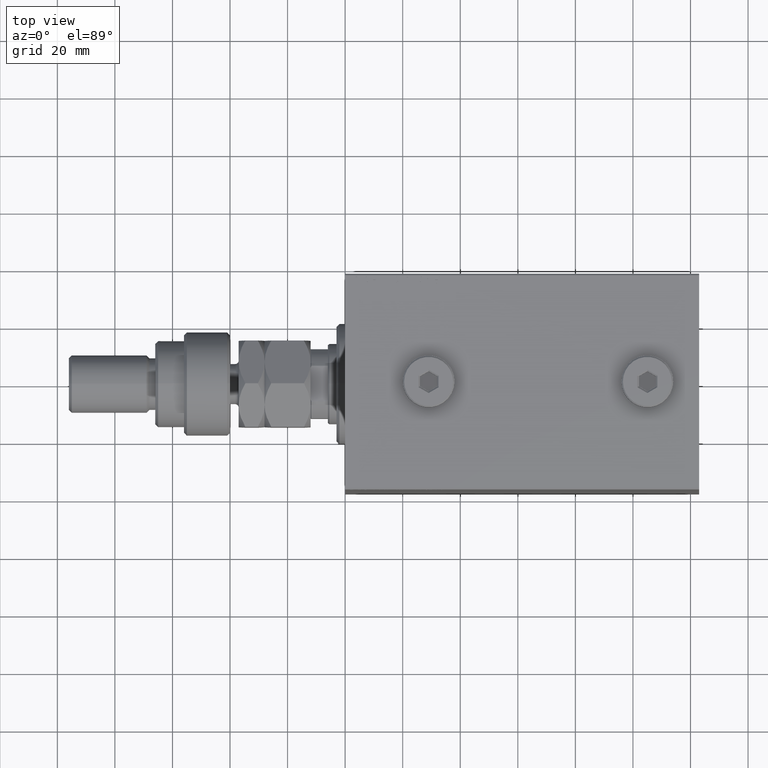
[diagram: clean part render]
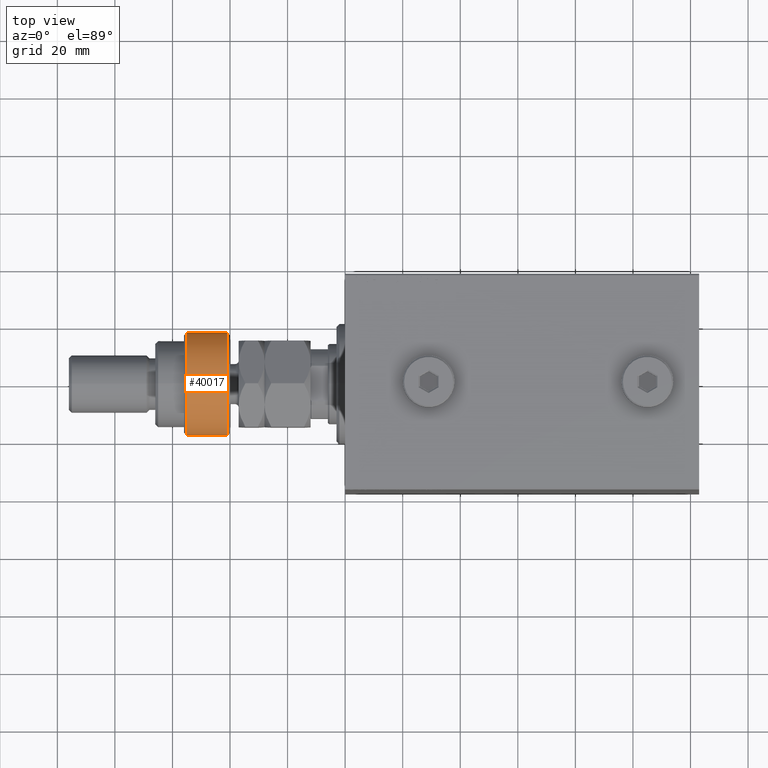
[diagram: same view with one face highlighted and labeled with its STEP entity id]
A machine part, top view. The second image highlights one B-rep face of the part: STEP entity #40017.
In plain terms, the highlighted cylindrical surface (partial cylindrical patch) has radius 18 mm, axis along (1, -0, -0).
Its self-contained STEP definition (entity closure, byte-faithful):
#642 = DIRECTION ( 'NONE',  ( -0.000000000000000000, -0.000000000000000000, -1.000000000000000000 ) ) ;
#1760 = CYLINDRICAL_SURFACE ( 'NONE', #39919, 18.00000000000000000 ) ;
#4606 = EDGE_CURVE ( 'NONE', #9627, #25214, #24994, .T. ) ;
#6943 = DIRECTION ( 'NONE',  ( 1.000000000000000000, 0.000000000000000000, 0.000000000000000000 ) ) ;
#7094 = CIRCLE ( 'NONE', #32162, 18.00000000000000000 ) ;
#7688 = EDGE_CURVE ( 'NONE', #43126, #9627, #7094, .T. ) ;
#7691 = CIRCLE ( 'NONE', #20218, 18.00000000000000000 ) ;
#7841 = ORIENTED_EDGE ( 'NONE', *, *, #7688, .T. ) ;
#8641 = LINE ( 'NONE', #42496, #25008 ) ;
#8898 = DIRECTION ( 'NONE',  ( -1.000000000000000000, 0.000000000000000000, 0.000000000000000000 ) ) ;
#9627 = VERTEX_POINT ( 'NONE', #18292 ) ;
#9654 = VERTEX_POINT ( 'NONE', #33021 ) ;
#9841 = CARTESIAN_POINT ( 'NONE',  ( -16.36306817195357155, -7.500000000000000000, 1.000000000000011324 ) ) ;
#12574 = FACE_OUTER_BOUND ( 'NONE', #40345, .T. ) ;
#12891 = CARTESIAN_POINT ( 'NONE',  ( 0.000000000000000000, 0.000000000000000000, 14.99999999999999645 ) ) ;
#15198 = DIRECTION ( 'NONE',  ( -0.000000000000000000, -0.000000000000000000, 1.000000000000000000 ) ) ;
#16377 = AXIS2_PLACEMENT_3D ( 'NONE', #36150, #27881, #6943 ) ;
#18079 = ORIENTED_EDGE ( 'NONE', *, *, #42173, .T. ) ;
#18292 = CARTESIAN_POINT ( 'NONE',  ( 18.00000000000000000, 0.000000000000000000, 1.000000000000011324 ) ) ;
#18800 = LINE ( 'NONE', #30332, #23232 ) ;
#19486 = ORIENTED_EDGE ( 'NONE', *, *, #34875, .T. ) ;
#20218 = AXIS2_PLACEMENT_3D ( 'NONE', #12891, #23193, #27605 ) ;
#23193 = DIRECTION ( 'NONE',  ( 0.000000000000000000, 0.000000000000000000, -1.000000000000000000 ) ) ;
#23232 = VECTOR ( 'NONE', #642, 1000.000000000000000 ) ;
#24994 = CIRCLE ( 'NONE', #16377, 18.00000000000000000 ) ;
#25008 = VECTOR ( 'NONE', #38548, 1000.000000000000000 ) ;
#25214 = VERTEX_POINT ( 'NONE', #30450 ) ;
#27303 = VERTEX_POINT ( 'NONE', #41901 ) ;
#27605 = DIRECTION ( 'NONE',  ( 1.000000000000000000, 0.000000000000000000, 0.000000000000000000 ) ) ;
#27881 = DIRECTION ( 'NONE',  ( -0.000000000000000000, -0.000000000000000000, 1.000000000000000000 ) ) ;
#30164 = DIRECTION ( 'NONE',  ( 1.000000000000000000, 0.000000000000000000, 0.000000000000000000 ) ) ;
#30332 = CARTESIAN_POINT ( 'NONE',  ( -16.36306817195357155, 7.500000000000000000, 17.50000000000000000 ) ) ;
#30450 = CARTESIAN_POINT ( 'NONE',  ( -16.36306817195357155, 7.500000000000000000, 1.000000000000011324 ) ) ;
#31929 = EDGE_CURVE ( 'NONE', #27303, #25214, #18800, .T. ) ;
#32162 = AXIS2_PLACEMENT_3D ( 'NONE', #33848, #15198, #30164 ) ;
#33021 = CARTESIAN_POINT ( 'NONE',  ( -16.36306817195357155, -7.500000000000000000, 14.99999999999999645 ) ) ;
#33593 = ORIENTED_EDGE ( 'NONE', *, *, #4606, .T. ) ;
#33848 = CARTESIAN_POINT ( 'NONE',  ( 0.000000000000000000, 0.000000000000000000, 1.000000000000011324 ) ) ;
#34875 = EDGE_CURVE ( 'NONE', #27303, #9654, #7691, .T. ) ;
#36150 = CARTESIAN_POINT ( 'NONE',  ( 0.000000000000000000, 0.000000000000000000, 1.000000000000011324 ) ) ;
#36295 = ORIENTED_EDGE ( 'NONE', *, *, #31929, .F. ) ;
#38548 = DIRECTION ( 'NONE',  ( -0.000000000000000000, -0.000000000000000000, -1.000000000000000000 ) ) ;
#39919 = AXIS2_PLACEMENT_3D ( 'NONE', #42255, #46437, #8898 ) ;
#40017 = ADVANCED_FACE ( 'NONE', ( #12574 ), #1760, .T. ) ;
#40345 = EDGE_LOOP ( 'NONE', ( #36295, #19486, #18079, #7841, #33593 ) ) ;
#41901 = CARTESIAN_POINT ( 'NONE',  ( -16.36306817195357155, 7.500000000000000000, 14.99999999999999645 ) ) ;
#42173 = EDGE_CURVE ( 'NONE', #9654, #43126, #8641, .T. ) ;
#42255 = CARTESIAN_POINT ( 'NONE',  ( 0.000000000000000000, 0.000000000000000000, 16.00000000000000000 ) ) ;
#42496 = CARTESIAN_POINT ( 'NONE',  ( -16.36306817195357155, -7.500000000000000000, 17.50000000000000000 ) ) ;
#43126 = VERTEX_POINT ( 'NONE', #9841 ) ;
#46437 = DIRECTION ( 'NONE',  ( -0.000000000000000000, -0.000000000000000000, -1.000000000000000000 ) ) ;